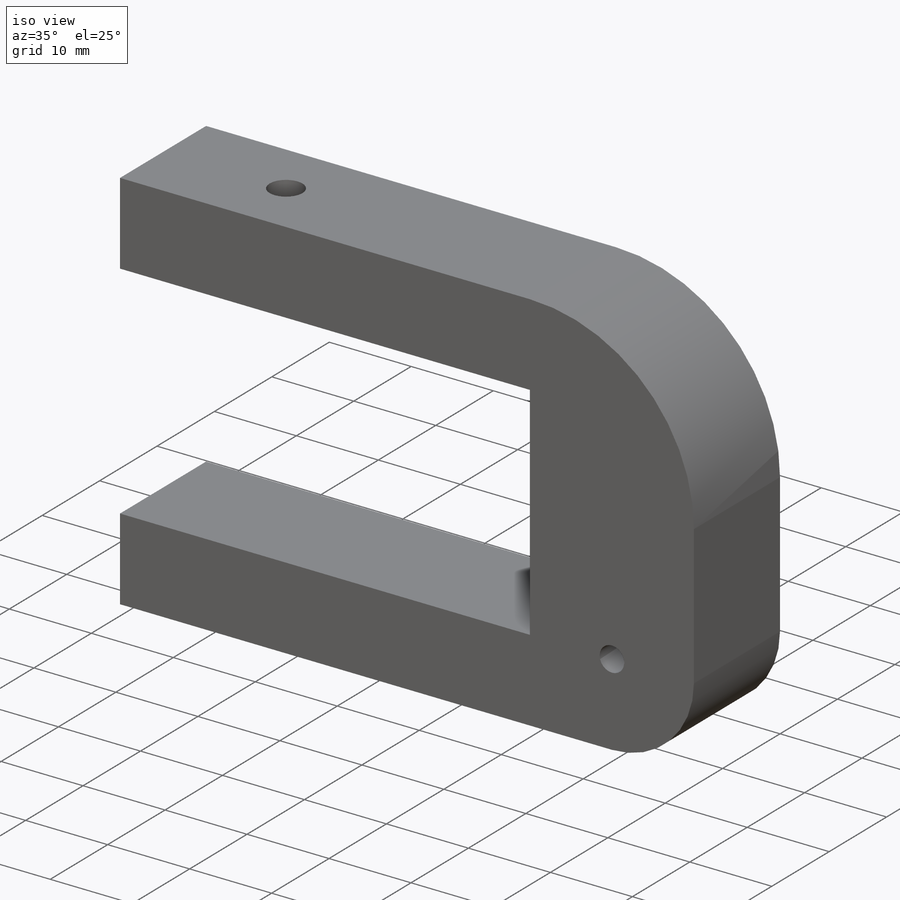
[diagram: iso view]
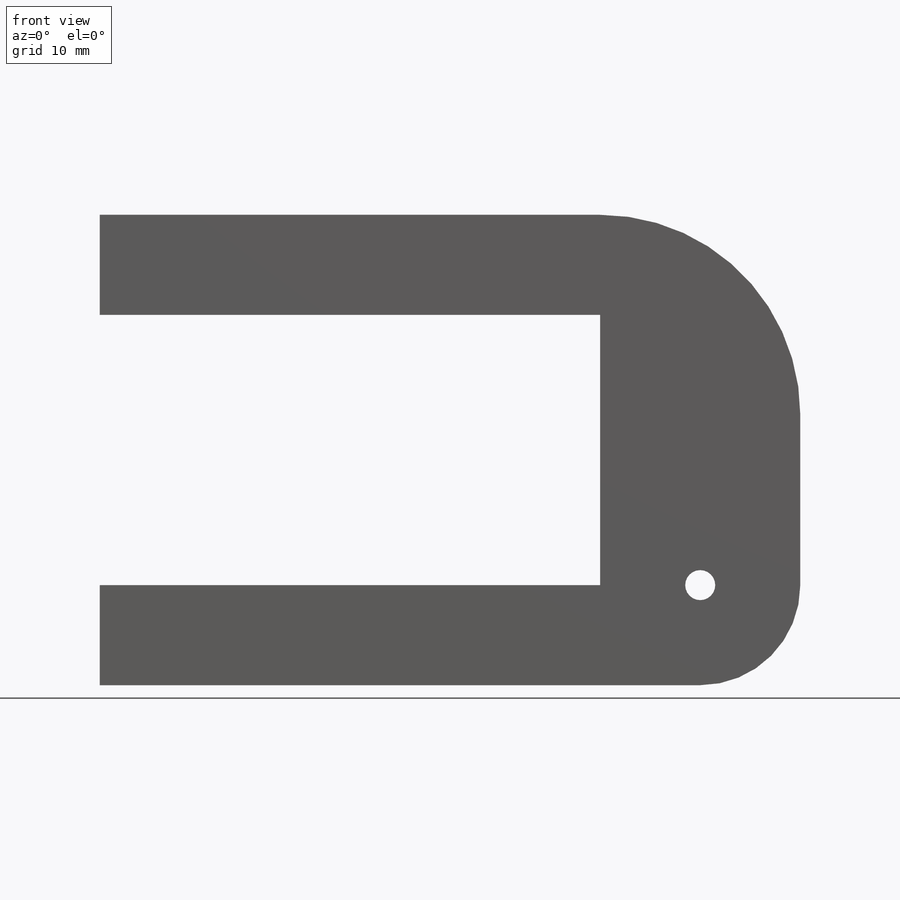
[diagram: front view]
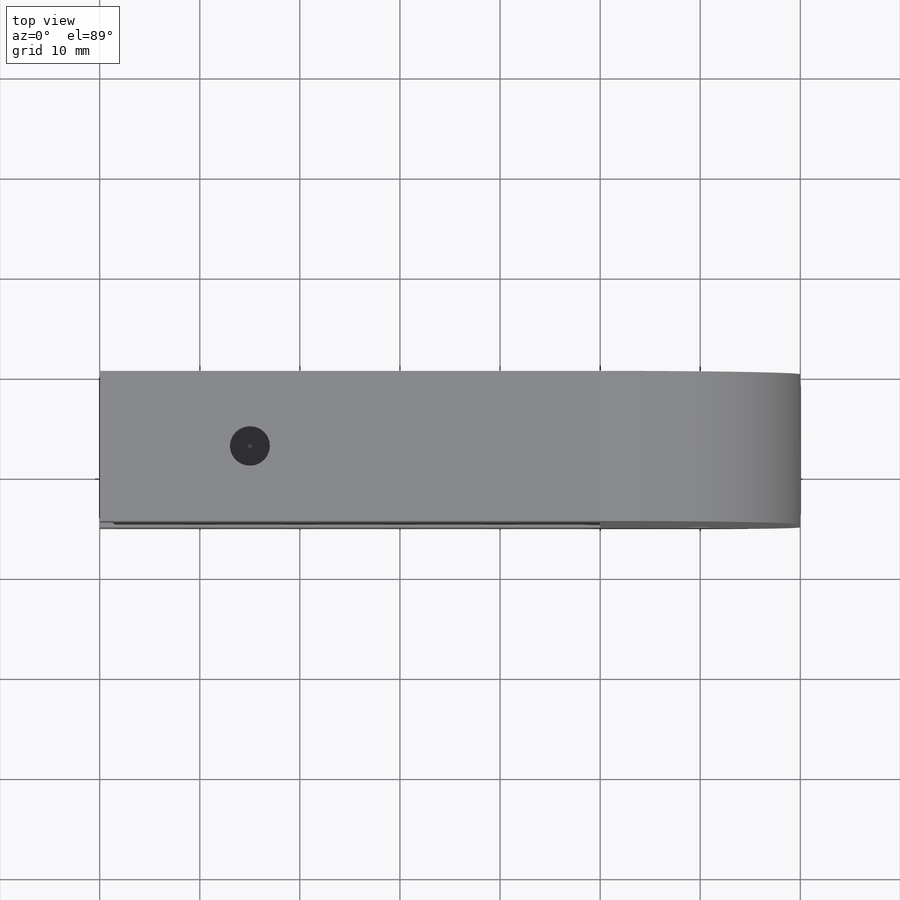
[diagram: top view]
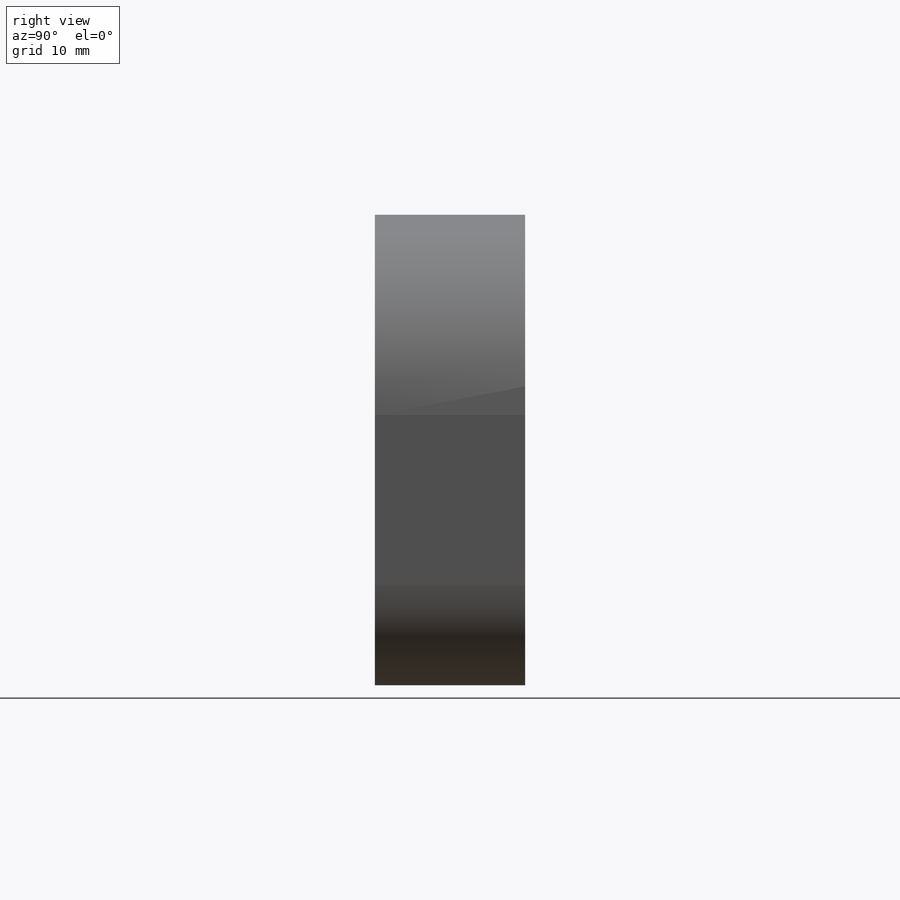
[diagram: right view]
SOLIDWORKS PART (.sldprt)
format: sldprt  version: not decoded by parser v0  size: 193,024 bytes
history: native  units: mm
features: sketch x4, plane x3, cut_extrude x3, material x1, extrude x1 (+9 scaffold rows collapsed)
feature tree (21):
  scaffold x9  (default folders/planes/origin — collapsed)
  material  "Matériau <non spécifié>"
  plane  "Plan de face"
  plane  "Plan de dessus"
  plane  "Plan de droite"
  sketch  "Esquisse1"  dims[c1.D4=~2.553853mm c1.D6=2.0mm c1.D1=10.0mm c1.D2=10.0mm c1.D3=27.0mm c2.D4=20.0mm c2.D5=50.0mm c3.D4=20.0mm]
  extrude  "Boss.-Extru.1"  Depth=15mm
  sketch  "Esquisse3"  dims[c1.D1=~9.425381mm c1.D2=20.0mm c1.D3=10.0mm c2.D1=15.0mm c2.D2=7.5mm]
  cut_extrude  "Enlèv. mat.-Extru.1"  Depth=2mm
  sketch  "Esquisse4"  dims[c1.D1=4.0mm c1.D2=4.0mm c2.D1=0.0mm c2.D2=0.0mm]
  cut_extrude  "Enlèv. mat.-Extru.2"  [1 undecoded]
  sketch  "Esquisse5"  dims[c1.D2=~3.012794mm c1.D1=~2.709552mm c2.D2=4.0mm c2.D1=1.5mm c3.D2=0.0mm c3.D1=6.0]
  cut_extrude  "Enlèv. mat.-Extru.3"  Depth=2.5mm
decode coverage: 7 of 8 modeling features carry decoded parameters
note: ~ marks probable driven/reference dimensions
note: 1 parameter value undecoded
note: suppression state not decoded; provenance and decode notes live in map.json
